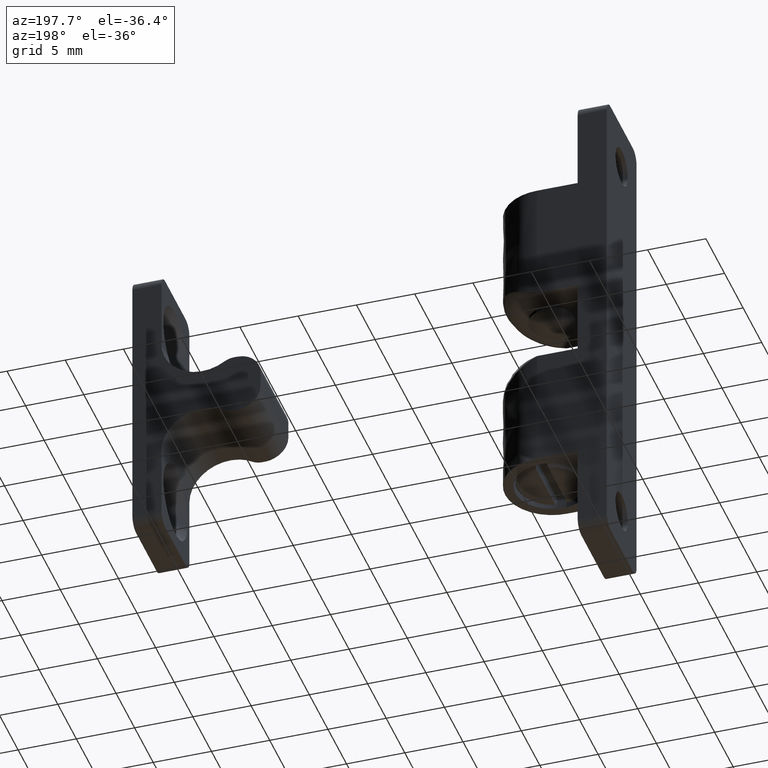
[diagram: clean part render]
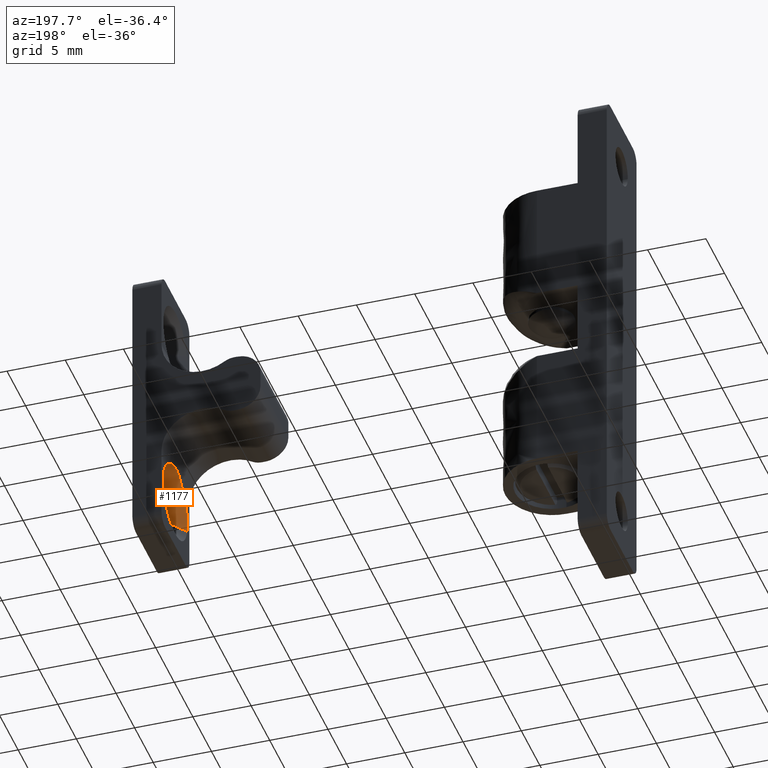
[diagram: same view with one face highlighted and labeled with its STEP entity id]
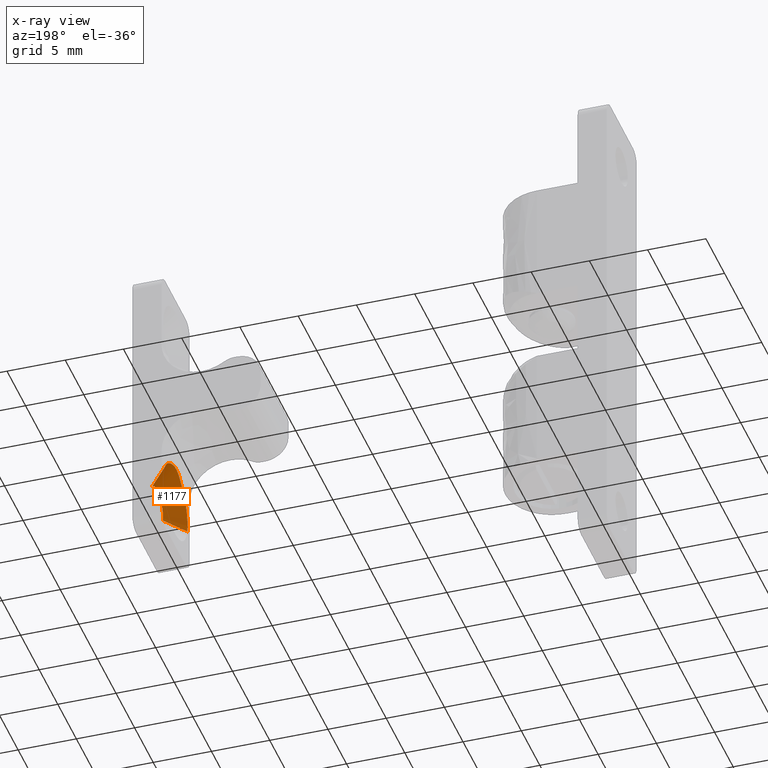
[diagram: x-ray of the same camera — body ghosted, the highlighted face saturated]
A machine part, auxiliary view. The second image highlights one B-rep face of the part: STEP entity #1177.
The next image is the same camera in x-ray: the body ghosted, the highlighted face saturated — about 1% of this face is hidden behind the body in this view.
In plain terms, the highlighted face is a freeform B-spline surface patch.
Its self-contained STEP definition (entity closure, byte-faithful):
#849=CARTESIAN_POINT('',(8.381540699305896,-1.605280877248891,39.902882948028392));
#850=VERTEX_POINT('',#849);
#864=CARTESIAN_POINT('',(7.870542492042405,-1.644913600659137,39.902882948054987));
#865=VERTEX_POINT('',#864);
#866=CARTESIAN_POINT('',(7.870542492042405,-1.644913600659138,39.902882948054994));
#867=CARTESIAN_POINT('',(7.935171323430665,-1.650000000000000,39.902882948055002));
#868=CARTESIAN_POINT('',(8.0,-1.650000000000000,39.902882948054987));
#869=CARTESIAN_POINT('',(8.193391039967661,-1.650000000000000,39.902882948055009));
#870=CARTESIAN_POINT('',(8.381540699305896,-1.605280877248891,39.902882948028399));
#878=(BOUNDED_CURVE()B_SPLINE_CURVE(2,(#866,#867,#868,#869,#870),.UNSPECIFIED.,.F.,.U.)B_SPLINE_CURVE_WITH_KNOTS((3,2,3),(0.736331300631381,0.750000000000000,0.789520173815472),.UNSPECIFIED.)CURVE()GEOMETRIC_REPRESENTATION_ITEM()RATIONAL_B_SPLINE_CURVE((0.969723356168923,0.983986122579727,1.0,0.953699236332477,0.922036986488391))REPRESENTATION_ITEM(''));
#879=EDGE_CURVE('',#865,#850,#878,.T.);
#950=CARTESIAN_POINT('',(7.253263581491782,1.471354723135140,39.902882948049367));
#951=VERTEX_POINT('',#950);
#999=CARTESIAN_POINT('',(6.350000000000000,0.0,39.902882948054987));
#1000=VERTEX_POINT('',#999);
#1001=CARTESIAN_POINT('',(6.350000000000000,0.0,39.902882948054987));
#1002=CARTESIAN_POINT('',(6.350000000000000,-1.525244311223668,39.902882948054994));
#1003=CARTESIAN_POINT('',(7.870542492042405,-1.644913600659137,39.902882948055002));
#1011=(BOUNDED_CURVE()B_SPLINE_CURVE(2,(#1001,#1002,#1003),.UNSPECIFIED.,.F.,.U.)B_SPLINE_CURVE_WITH_KNOTS((3,3),(0.500000000000000,0.736331300631381),.UNSPECIFIED.)CURVE()GEOMETRIC_REPRESENTATION_ITEM()RATIONAL_B_SPLINE_CURVE((1.0,0.723120658606821,0.969723356168922))REPRESENTATION_ITEM(''));
#1012=EDGE_CURVE('',#1000,#865,#1011,.T.);
#1014=CARTESIAN_POINT('',(7.253263581491782,1.471354723135140,39.902882948049367));
#1015=CARTESIAN_POINT('',(6.350000000000000,1.012933785416369,39.902882948055002));
#1016=CARTESIAN_POINT('',(6.350000000000000,0.0,39.902882948054987));
#1024=(BOUNDED_CURVE()B_SPLINE_CURVE(2,(#1014,#1015,#1016),.UNSPECIFIED.,.F.,.U.)B_SPLINE_CURVE_WITH_KNOTS((3,3),(0.326956316280397,0.500000000000000),.UNSPECIFIED.)CURVE()GEOMETRIC_REPRESENTATION_ITEM()RATIONAL_B_SPLINE_CURVE((0.875187144926977,0.797266713920113,1.0))REPRESENTATION_ITEM(''));
#1025=EDGE_CURVE('',#951,#1000,#1024,.T.);
#1052=CARTESIAN_POINT('',(8.751519550571382,-3.161916887584840,38.302882942072657));
#1053=VERTEX_POINT('',#1052);
#1054=CARTESIAN_POINT('',(6.529155539476820,2.898122939586934,38.302882948053202));
#1055=VERTEX_POINT('',#1054);
#1075=CARTESIAN_POINT('',(8.381540699305896,-1.605280877248891,39.902882948028392));
#1076=CARTESIAN_POINT('',(8.751519550571382,-3.161916887584840,38.302882942072657));
#1077=QUASI_UNIFORM_CURVE('',1,(#1075,#1076),.UNSPECIFIED.,.F.,.U.);
#1078=EDGE_CURVE('',#850,#1053,#1077,.T.);
#1083=CARTESIAN_POINT('',(7.253263581491782,1.471354723135140,39.902882948049367));
#1084=CARTESIAN_POINT('',(6.529155539476820,2.898122939586934,38.302882948053202));
#1085=QUASI_UNIFORM_CURVE('',1,(#1083,#1084),.UNSPECIFIED.,.F.,.U.);
#1086=EDGE_CURVE('',#951,#1055,#1085,.T.);
#1091=CARTESIAN_POINT('',(8.371850964883869,-1.564512631494108,39.944786895516572));
#1092=CARTESIAN_POINT('',(6.807338333389762,-1.936363596377976,39.944786895516572));
#1093=CARTESIAN_POINT('',(6.435487368505893,-0.371850964883869,39.944786895516572));
#1094=CARTESIAN_POINT('',(6.142546941647012,0.860656252729849,39.944786895516572));
#1095=CARTESIAN_POINT('',(7.272227947406542,1.433987710426274,39.944786895516565));
#1096=CARTESIAN_POINT('',(8.779062044086391,-3.277798160538413,38.183773503444293));
#1097=CARTESIAN_POINT('',(5.501263883547979,-4.056860204624806,38.183773503444286));
#1098=CARTESIAN_POINT('',(4.722201839461587,-0.779062044086392,38.183773503444293));
#1099=CARTESIAN_POINT('',(4.108464645541723,1.803154174191408,38.183773503444286));
#1100=CARTESIAN_POINT('',(6.475250472727751,3.004336420717249,38.183773503444293));
#1108=(BOUNDED_SURFACE()B_SPLINE_SURFACE(2,1,((#1091,#1096),(#1092,#1097),(#1093,#1098),(#1094,#1099),(#1095,#1100)),.UNSPECIFIED.,.F.,.F.,.U.)B_SPLINE_SURFACE_WITH_KNOTS((3,2,3),(2,2),(0.0,5.582123300308164,10.271106872567019),(0.0,2.490449022589265),.UNSPECIFIED.)GEOMETRIC_REPRESENTATION_ITEM()RATIONAL_B_SPLINE_SURFACE(((1.0,1.0),(0.707106781186548,0.707106781186548),(1.0,1.0),(0.753969696196700,0.753969696196700),(0.921270302782944,0.921270302782944)))REPRESENTATION_ITEM('')SURFACE());
#1109=CARTESIAN_POINT('',(5.399999995640040,1.949999994186680,38.302882948055000));
#1110=VERTEX_POINT('',#1109);
#1111=CARTESIAN_POINT('',(6.529155539476821,2.898122939586935,38.302882948053195));
#1112=CARTESIAN_POINT('',(5.854166140778445,2.555554857191994,38.302882948055007));
#1113=CARTESIAN_POINT('',(5.399999995640022,1.949999994186697,38.302882948055000));
#1121=(BOUNDED_CURVE()B_SPLINE_CURVE(2,(#1111,#1112,#1113),.UNSPECIFIED.,.F.,.U.)B_SPLINE_CURVE_WITH_KNOTS((3,3),(0.907382019664664,1.0),.UNSPECIFIED.)CURVE()GEOMETRIC_REPRESENTATION_ITEM()RATIONAL_B_SPLINE_CURVE((0.911954869655404,0.930070529552713,1.0))REPRESENTATION_ITEM(''));
#1122=EDGE_CURVE('',#1055,#1110,#1121,.T.);
#1123=ORIENTED_EDGE('',*,*,#1122,.F.);
#1124=ORIENTED_EDGE('',*,*,#1086,.F.);
#1125=ORIENTED_EDGE('',*,*,#1025,.T.);
#1126=ORIENTED_EDGE('',*,*,#1012,.T.);
#1127=ORIENTED_EDGE('',*,*,#879,.T.);
#1128=ORIENTED_EDGE('',*,*,#1078,.T.);
#1129=CARTESIAN_POINT('',(5.399999995640040,-1.949999994186685,38.302882948055000));
#1130=VERTEX_POINT('',#1129);
#1131=CARTESIAN_POINT('',(5.399999995640022,-1.949999994186697,38.302882948055000));
#1132=CARTESIAN_POINT('',(6.678476005113430,-3.654634681424924,38.302882948055000));
#1133=CARTESIAN_POINT('',(8.751519550571382,-3.161916887584839,38.302882942072657));
#1141=(BOUNDED_CURVE()B_SPLINE_CURVE(2,(#1131,#1132,#1133),.UNSPECIFIED.,.F.,.U.)B_SPLINE_CURVE_WITH_KNOTS((3,3),(0.0,0.231355260554535),.UNSPECIFIED.)CURVE()GEOMETRIC_REPRESENTATION_ITEM()RATIONAL_B_SPLINE_CURVE((1.0,0.825319545975888,0.973945027588039))REPRESENTATION_ITEM(''));
#1142=EDGE_CURVE('',#1130,#1053,#1141,.T.);
#1143=ORIENTED_EDGE('',*,*,#1142,.F.);
#1144=CARTESIAN_POINT('',(5.399999995640018,-1.949999994186697,38.302882948055000));
#1145=CARTESIAN_POINT('',(5.293426290224296,-1.807901719637160,38.302882948054993));
#1146=CARTESIAN_POINT('',(5.195638407754495,-1.661431238252351,38.298014181759058));
#1147=CARTESIAN_POINT('',(5.020682161634825,-1.357930535899269,38.283374864468882));
#1148=CARTESIAN_POINT('',(4.943474349334200,-1.200921285175784,38.273596915472652));
#1149=CARTESIAN_POINT('',(4.846536585004829,-0.955533088164364,38.259000137970403));
#1150=CARTESIAN_POINT('',(4.817383490514505,-0.872076544457629,38.254148262088201));
#1151=CARTESIAN_POINT('',(4.766240537811024,-0.701415751889573,38.245123963658870));
#1152=CARTESIAN_POINT('',(4.744660585903242,-0.615552881060182,38.241028634278670));
#1153=CARTESIAN_POINT('',(4.692367194264109,-0.356285047874007,38.230785779966560));
#1154=CARTESIAN_POINT('',(4.674092357363368,-0.181199440368520,38.226778122386662));
#1155=CARTESIAN_POINT('',(4.673782720593217,0.040729301729984,38.226712452196693));
#1156=CARTESIAN_POINT('',(4.674854813644692,0.085383923179046,38.226940417337772));
#1157=CARTESIAN_POINT('',(4.679268813545825,0.174435667019702,38.227872240166633));
#1158=CARTESIAN_POINT('',(4.682598270504692,0.218721520783201,38.228573405402607));
#1159=CARTESIAN_POINT('',(4.695846089960983,0.350883247267695,38.231329922455430));
#1160=CARTESIAN_POINT('',(4.709021988710400,0.438063504766910,38.234042887279948));
#1161=CARTESIAN_POINT('',(4.743528805270256,0.610694097687900,38.240811788333282));
#1162=CARTESIAN_POINT('',(4.764859382094970,0.696144554100118,38.244866385388910));
#1163=CARTESIAN_POINT('',(4.802620408051945,0.823110481210496,38.251549505406821));
#1164=CARTESIAN_POINT('',(4.816168823733887,0.865230751946597,38.253876522677267));
#1165=CARTESIAN_POINT('',(4.845136885620083,0.949081415948858,38.258652387487039));
#1166=CARTESIAN_POINT('',(4.860590482593397,0.990892390347037,38.261106073167483));
#1167=CARTESIAN_POINT('',(4.941796622072355,1.197477968704386,38.273382416675993));
#1168=CARTESIAN_POINT('',(5.019450094345010,1.355640213989490,38.283250008635967));
#1169=CARTESIAN_POINT('',(5.195162849802289,1.660757823372868,38.297995943000608));
#1170=CARTESIAN_POINT('',(5.293266131412799,1.807688174554170,38.302882948055000));
#1171=CARTESIAN_POINT('',(5.399999995640016,1.949999994186694,38.302882948055000));
#1172=B_SPLINE_CURVE_WITH_KNOTS('',3,(#1144,#1145,#1146,#1147,#1148,#1149,#1150,#1151,#1152,#1153,#1154,#1155,#1156,#1157,#1158,#1159,#1160,#1161,#1162,#1163,#1164,#1165,#1166,#1167,#1168,#1169,#1170,#1171),.UNSPECIFIED.,.F.,.U.,(4,2,2,2,2,2,2,2,2,2,2,2,2,4),(0.0,0.125000000000000,0.250000000000001,0.312500000000001,0.375000000000001,0.500000000000002,0.531250000000002,0.562500000000002,0.625000000000002,0.687500000000003,0.718750000000003,0.750000000000003,0.875000000000001,1.0),.UNSPECIFIED.);
#1173=EDGE_CURVE('',#1130,#1110,#1172,.T.);
#1174=ORIENTED_EDGE('',*,*,#1173,.T.);
#1175=EDGE_LOOP('',(#1123,#1124,#1125,#1126,#1127,#1128,#1143,#1174));
#1176=FACE_OUTER_BOUND('',#1175,.T.);
#1177=ADVANCED_FACE('',(#1176),#1108,.F.);